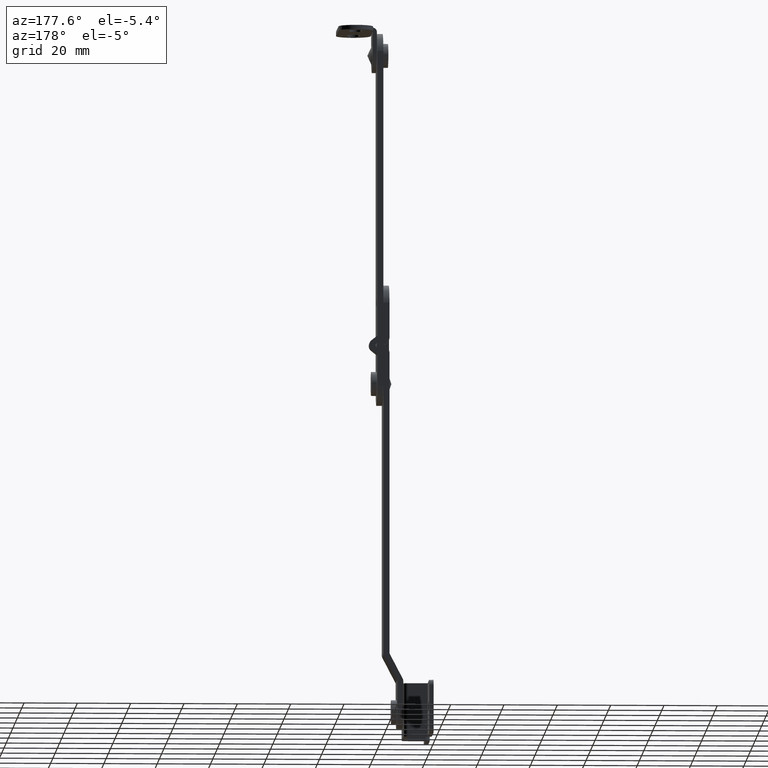
[diagram: clean part render]
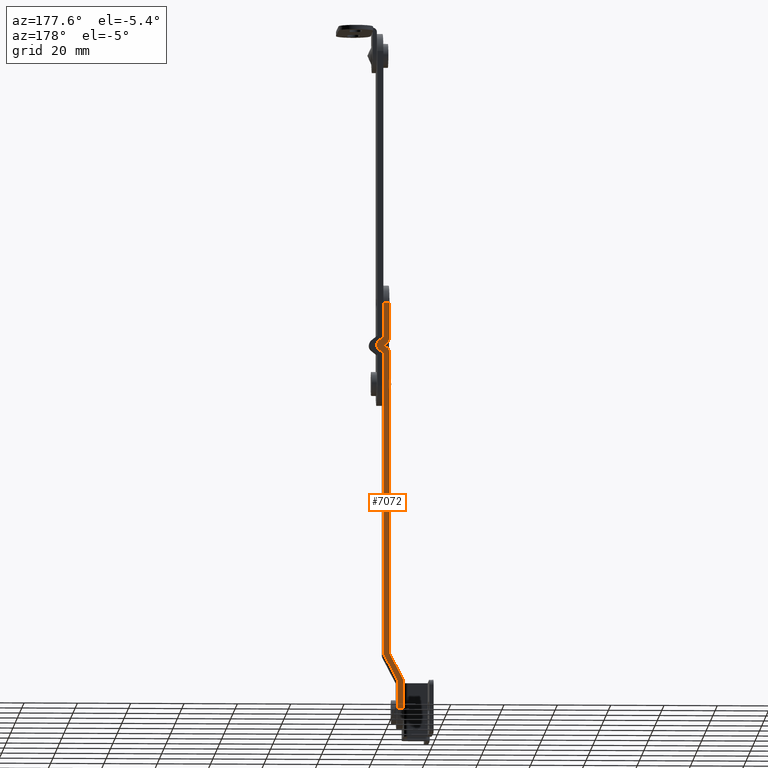
[diagram: same view with one face highlighted and labeled with its STEP entity id]
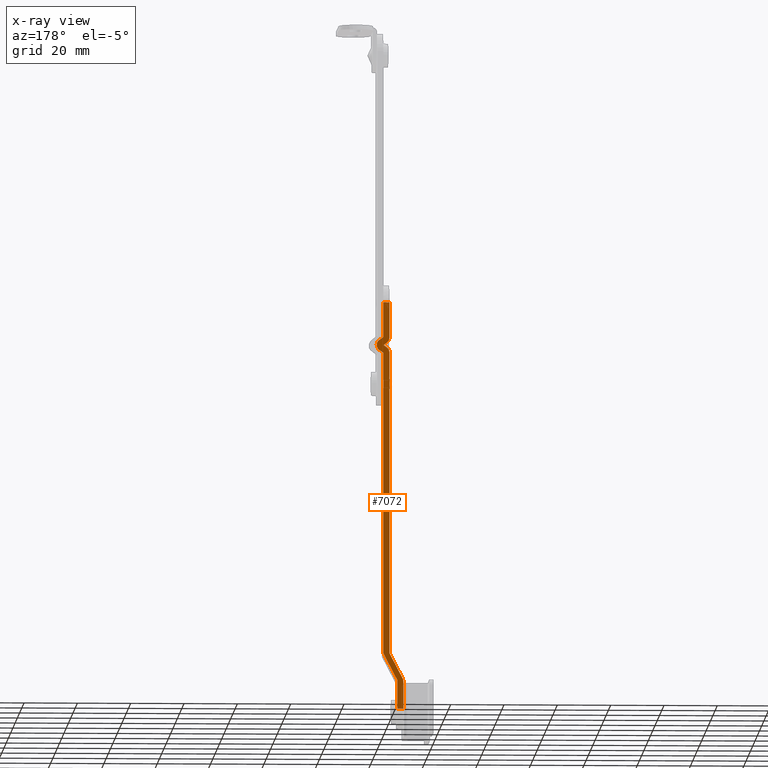
[diagram: x-ray of the same camera — body ghosted, the highlighted face saturated]
A machine part, auxiliary view. The second image highlights one B-rep face of the part: STEP entity #7072.
The next image is the same camera in x-ray: the body ghosted, the highlighted face saturated — about 0% of this face is hidden behind the body in this view.
In plain terms, the highlighted face is a freeform B-spline surface patch.
Its self-contained STEP definition (entity closure, byte-faithful):
#6071=CARTESIAN_POINT('',(12.800005999999900,7.099999999999799,-122.900000000032410));
#6072=VERTEX_POINT('',#6071);
#6123=CARTESIAN_POINT('',(10.500005999999900,7.099999999999799,-122.900000000032410));
#6124=VERTEX_POINT('',#6123);
#6137=CARTESIAN_POINT('',(10.500005999999900,7.099999999999799,-122.900000000032410));
#6138=CARTESIAN_POINT('',(12.800005999999900,7.099999999999799,-122.900000000032410));
#6139=QUASI_UNIFORM_CURVE('',1,(#6137,#6138),.UNSPECIFIED.,.F.,.U.);
#6140=EDGE_CURVE('',#6124,#6072,#6139,.T.);
#6161=CARTESIAN_POINT('',(18.000005999999900,7.099999999999810,30.0));
#6162=VERTEX_POINT('',#6161);
#6175=CARTESIAN_POINT('',(15.700005999999901,7.099999999999810,30.0));
#6176=VERTEX_POINT('',#6175);
#6177=CARTESIAN_POINT('',(18.000005999999900,7.099999999999810,30.0));
#6178=CARTESIAN_POINT('',(15.700005999999901,7.099999999999810,30.0));
#6179=QUASI_UNIFORM_CURVE('',1,(#6177,#6178),.UNSPECIFIED.,.F.,.U.);
#6180=EDGE_CURVE('',#6162,#6176,#6179,.T.);
#6320=CARTESIAN_POINT('',(19.561026998289702,7.099999999999770,12.145930733421380));
#6321=VERTEX_POINT('',#6320);
#6327=CARTESIAN_POINT('',(19.561026998287002,7.099999999999779,15.854069266524650));
#6328=VERTEX_POINT('',#6327);
#6329=CARTESIAN_POINT('',(19.561026998289702,7.099999999999770,12.145930733421380));
#6330=CARTESIAN_POINT('',(19.887717372291561,7.099999999999774,12.384546528588629));
#6331=CARTESIAN_POINT('',(20.306991514372680,7.099999999999771,12.912233009705361));
#6332=CARTESIAN_POINT('',(20.553737619657021,7.099999999999794,13.882895589743670));
#6333=CARTESIAN_POINT('',(20.448149027735329,7.099999999999759,14.681018137247190));
#6334=CARTESIAN_POINT('',(20.078951171945409,7.099999999999795,15.383115720602509));
#6335=CARTESIAN_POINT('',(19.760288412498010,7.099999999999786,15.707965993294540));
#6336=CARTESIAN_POINT('',(19.561026998287002,7.099999999999779,15.854069266524650));
#6337=B_SPLINE_CURVE_WITH_KNOTS('',3,(#6329,#6330,#6331,#6332,#6333,#6334,#6335,#6336),.UNSPECIFIED.,.F.,.U.,(4,1,1,1,1,4),(0.000001040172775,1.213023638568774,1.954308735717294,2.965130247296288,3.571682070490187,4.312933762035334),.UNSPECIFIED.);
#6338=EDGE_CURVE('',#6321,#6328,#6337,.T.);
#6354=CARTESIAN_POINT('',(17.999997000007362,7.099999999999885,10.999999999972101));
#6355=VERTEX_POINT('',#6354);
#6361=CARTESIAN_POINT('',(17.999997000007362,7.099999999999885,10.999999999972101));
#6362=CARTESIAN_POINT('',(19.561026998289702,7.099999999999770,12.145930733421380));
#6363=QUASI_UNIFORM_CURVE('',1,(#6361,#6362),.UNSPECIFIED.,.F.,.U.);
#6364=EDGE_CURVE('',#6355,#6321,#6363,.T.);
#6384=CARTESIAN_POINT('',(15.699988000014550,7.099999999999770,11.220224619865300));
#6385=VERTEX_POINT('',#6384);
#6391=CARTESIAN_POINT('',(15.699987999999900,7.099999999999770,10.999999999972101));
#6392=VERTEX_POINT('',#6391);
#6393=CARTESIAN_POINT('',(15.699988000014550,7.099999999999770,11.220224619865300));
#6394=CARTESIAN_POINT('',(15.699987999999900,7.099999999999770,10.999999999972101));
#6395=QUASI_UNIFORM_CURVE('',1,(#6393,#6394),.UNSPECIFIED.,.F.,.U.);
#6396=EDGE_CURVE('',#6385,#6392,#6395,.T.);
#6433=CARTESIAN_POINT('',(16.638949001737100,7.099999999999779,13.074293886416219));
#6434=VERTEX_POINT('',#6433);
#6440=CARTESIAN_POINT('',(16.638949001737100,7.099999999999779,13.074293886416219));
#6441=CARTESIAN_POINT('',(16.403352676712451,7.099999999999775,12.901682545196451));
#6442=CARTESIAN_POINT('',(16.077358205807169,7.099999999999777,12.549039962629720));
#6443=CARTESIAN_POINT('',(15.769466857447620,7.099999999999772,11.894015137331120));
#6444=CARTESIAN_POINT('',(15.699838640401859,7.099999999999765,11.467336830895130));
#6445=CARTESIAN_POINT('',(15.699988000014550,7.099999999999770,11.220224619865300));
#6446=B_SPLINE_CURVE_WITH_KNOTS('',3,(#6440,#6441,#6442,#6443,#6444,#6445),.UNSPECIFIED.,.F.,.U.,(4,1,1,4),(0.000000243634032,0.876074345869117,1.415158949094645,2.156466879870076),.UNSPECIFIED.);
#6447=EDGE_CURVE('',#6434,#6385,#6446,.T.);
#6470=CARTESIAN_POINT('',(17.899988000012549,7.099999999999779,13.999999999971701));
#6471=VERTEX_POINT('',#6470);
#6477=CARTESIAN_POINT('',(17.899988000012549,7.099999999999779,13.999999999971701));
#6478=CARTESIAN_POINT('',(16.638949001737100,7.099999999999779,13.074293886416219));
#6479=QUASI_UNIFORM_CURVE('',1,(#6477,#6478),.UNSPECIFIED.,.F.,.U.);
#6480=EDGE_CURVE('',#6471,#6434,#6479,.T.);
#6498=CARTESIAN_POINT('',(16.638949001735600,7.099999999999779,14.925706113525161));
#6499=VERTEX_POINT('',#6498);
#6505=CARTESIAN_POINT('',(16.638949001735600,7.099999999999779,14.925706113525161));
#6506=CARTESIAN_POINT('',(17.899988000012549,7.099999999999779,13.999999999971701));
#6507=QUASI_UNIFORM_CURVE('',1,(#6505,#6506),.UNSPECIFIED.,.F.,.U.);
#6508=EDGE_CURVE('',#6499,#6471,#6507,.T.);
#6537=CARTESIAN_POINT('',(15.699987999999900,7.099999999999779,16.779775380078000));
#6538=VERTEX_POINT('',#6537);
#6544=CARTESIAN_POINT('',(15.699987999999900,7.099999999999779,16.779775380078000));
#6545=CARTESIAN_POINT('',(15.699564098060961,7.099999999999780,16.442759258798301));
#6546=CARTESIAN_POINT('',(15.860849464594549,7.099999999999769,15.724434415783129));
#6547=CARTESIAN_POINT('',(16.330508482863198,7.099999999999790,15.151066240765291));
#6548=CARTESIAN_POINT('',(16.638949001735600,7.099999999999779,14.925706113525161));
#6549=B_SPLINE_CURVE_WITH_KNOTS('',3,(#6544,#6545,#6546,#6547,#6548),.UNSPECIFIED.,.F.,.U.,(4,1,4),(0.000000243633246,1.010890450250671,2.156466879876590),.UNSPECIFIED.);
#6550=EDGE_CURVE('',#6538,#6499,#6549,.T.);
#6577=CARTESIAN_POINT('',(15.699987999999900,7.099999999999779,16.999999999971699));
#6578=VERTEX_POINT('',#6577);
#6584=CARTESIAN_POINT('',(15.699987999999900,7.099999999999779,16.999999999971699));
#6585=CARTESIAN_POINT('',(15.699987999999900,7.099999999999779,16.779775380078000));
#6586=QUASI_UNIFORM_CURVE('',1,(#6584,#6585),.UNSPECIFIED.,.F.,.U.);
#6587=EDGE_CURVE('',#6578,#6538,#6586,.T.);
#6600=CARTESIAN_POINT('',(17.999997000004878,7.099999999999795,16.999999999971699));
#6601=VERTEX_POINT('',#6600);
#6602=CARTESIAN_POINT('',(19.561026998287002,7.099999999999779,15.854069266524650));
#6603=CARTESIAN_POINT('',(17.999997000004878,7.099999999999795,16.999999999971699));
#6604=QUASI_UNIFORM_CURVE('',1,(#6602,#6603),.UNSPECIFIED.,.F.,.U.);
#6605=EDGE_CURVE('',#6328,#6601,#6604,.T.);
#6870=CARTESIAN_POINT('',(17.740604642839450,7.099999999999759,-102.498848763802400));
#6871=VERTEX_POINT('',#6870);
#6872=CARTESIAN_POINT('',(18.000005999999900,7.099999999999759,-101.437737469526000));
#6873=VERTEX_POINT('',#6872);
#6874=CARTESIAN_POINT('',(17.740604642839450,7.099999999999759,-102.498848763802400));
#6875=CARTESIAN_POINT('',(17.910688378438731,7.099999999999771,-102.172811814388990));
#6876=CARTESIAN_POINT('',(18.000341831389481,7.099999999999750,-101.805434995747400));
#6877=CARTESIAN_POINT('',(18.000005999999900,7.099999999999759,-101.437737469526000));
#6878=B_SPLINE_CURVE_WITH_KNOTS('',3,(#6874,#6875,#6876,#6877),.UNSPECIFIED.,.F.,.U.,(4,4),(0.000000055879067,1.102935631574775),.UNSPECIFIED.);
#6879=EDGE_CURVE('',#6871,#6873,#6878,.T.);
#6900=CARTESIAN_POINT('',(12.800005999999900,7.099999999999759,-112.0));
#6901=VERTEX_POINT('',#6900);
#6902=CARTESIAN_POINT('',(12.800005999999900,7.099999999999759,-112.0));
#6903=CARTESIAN_POINT('',(17.740604642839450,7.099999999999759,-102.498848763802400));
#6904=QUASI_UNIFORM_CURVE('',1,(#6902,#6903),.UNSPECIFIED.,.F.,.U.);
#6905=EDGE_CURVE('',#6901,#6871,#6904,.T.);
#6922=CARTESIAN_POINT('',(12.800005999999900,7.099999999999799,-122.900000000032410));
#6923=CARTESIAN_POINT('',(12.800005999999900,7.099999999999759,-112.0));
#6924=QUASI_UNIFORM_CURVE('',1,(#6922,#6923),.UNSPECIFIED.,.F.,.U.);
#6925=EDGE_CURVE('',#6072,#6901,#6924,.T.);
#6950=CARTESIAN_POINT('',(10.500005999999900,7.099999999999759,-112.562262530539000));
#6951=VERTEX_POINT('',#6950);
#6957=CARTESIAN_POINT('',(10.500005999999900,7.099999999999759,-112.562262530539000));
#6958=CARTESIAN_POINT('',(10.500005999999900,7.099999999999799,-122.900000000032410));
#6959=QUASI_UNIFORM_CURVE('',1,(#6957,#6958),.UNSPECIFIED.,.F.,.U.);
#6960=EDGE_CURVE('',#6951,#6124,#6959,.T.);
#6987=CARTESIAN_POINT('',(10.759407357160320,7.099999999999759,-111.501151236262400));
#6988=VERTEX_POINT('',#6987);
#6989=CARTESIAN_POINT('',(10.759407357160320,7.099999999999759,-111.501151236262400));
#6990=CARTESIAN_POINT('',(10.589471380583200,7.099999999999764,-111.827223260139600));
#6991=CARTESIAN_POINT('',(10.499521475262990,7.099999999999760,-112.194530186918700));
#6992=CARTESIAN_POINT('',(10.500005999999900,7.099999999999759,-112.562262530539000));
#6993=B_SPLINE_CURVE_WITH_KNOTS('',3,(#6989,#6990,#6991,#6992),.UNSPECIFIED.,.F.,.U.,(4,4),(0.000000055878003,1.102935631574964),.UNSPECIFIED.);
#6994=EDGE_CURVE('',#6988,#6951,#6993,.T.);
#7011=CARTESIAN_POINT('',(15.700005999999901,7.099999999999759,-102.000000000032400));
#7012=VERTEX_POINT('',#7011);
#7013=CARTESIAN_POINT('',(15.700005999999901,7.099999999999759,-102.000000000032400));
#7014=CARTESIAN_POINT('',(10.759407357160320,7.099999999999759,-111.501151236262400));
#7015=QUASI_UNIFORM_CURVE('',1,(#7013,#7014),.UNSPECIFIED.,.F.,.U.);
#7016=EDGE_CURVE('',#7012,#6988,#7015,.T.);
#7028=CARTESIAN_POINT('',(10.000512245995839,7.099999999999810,-130.537356139000000));
#7029=CARTESIAN_POINT('',(20.999369459067829,7.099999999999810,-130.537356139000000));
#7030=CARTESIAN_POINT('',(10.000512245995839,7.099999999999810,37.637358873032611));
#7031=CARTESIAN_POINT('',(20.999369459067829,7.099999999999810,37.637358873032611));
#7032=B_SPLINE_SURFACE_WITH_KNOTS('',1,1,((#7028,#7030),(#7029,#7031)),.UNSPECIFIED.,.F.,.F.,.U.,(2,2),(2,2),(0.0,10.998857213071989),(0.0,168.174715012032610),.UNSPECIFIED.);
#7033=ORIENTED_EDGE('',*,*,#6960,.F.);
#7034=ORIENTED_EDGE('',*,*,#6994,.F.);
#7035=ORIENTED_EDGE('',*,*,#7016,.F.);
#7036=CARTESIAN_POINT('',(15.699987999999900,7.099999999999770,10.999999999972101));
#7037=CARTESIAN_POINT('',(15.700005999999901,7.099999999999759,-102.000000000032400));
#7038=QUASI_UNIFORM_CURVE('',1,(#7036,#7037),.UNSPECIFIED.,.F.,.U.);
#7039=EDGE_CURVE('',#6392,#7012,#7038,.T.);
#7040=ORIENTED_EDGE('',*,*,#7039,.F.);
#7041=ORIENTED_EDGE('',*,*,#6396,.F.);
#7042=ORIENTED_EDGE('',*,*,#6447,.F.);
#7043=ORIENTED_EDGE('',*,*,#6480,.F.);
#7044=ORIENTED_EDGE('',*,*,#6508,.F.);
#7045=ORIENTED_EDGE('',*,*,#6550,.F.);
#7046=ORIENTED_EDGE('',*,*,#6587,.F.);
#7047=CARTESIAN_POINT('',(15.700005999999901,7.099999999999810,30.0));
#7048=CARTESIAN_POINT('',(15.699987999999900,7.099999999999779,16.999999999971699));
#7049=QUASI_UNIFORM_CURVE('',1,(#7047,#7048),.UNSPECIFIED.,.F.,.U.);
#7050=EDGE_CURVE('',#6176,#6578,#7049,.T.);
#7051=ORIENTED_EDGE('',*,*,#7050,.F.);
#7052=ORIENTED_EDGE('',*,*,#6180,.F.);
#7053=CARTESIAN_POINT('',(17.999997000004878,7.099999999999795,16.999999999971699));
#7054=CARTESIAN_POINT('',(18.000005999999900,7.099999999999810,30.0));
#7055=QUASI_UNIFORM_CURVE('',1,(#7053,#7054),.UNSPECIFIED.,.F.,.U.);
#7056=EDGE_CURVE('',#6601,#6162,#7055,.T.);
#7057=ORIENTED_EDGE('',*,*,#7056,.F.);
#7058=ORIENTED_EDGE('',*,*,#6605,.F.);
#7059=ORIENTED_EDGE('',*,*,#6338,.F.);
#7060=ORIENTED_EDGE('',*,*,#6364,.F.);
#7061=CARTESIAN_POINT('',(18.000005999999900,7.099999999999759,-101.437737469526000));
#7062=CARTESIAN_POINT('',(17.999997000007362,7.099999999999885,10.999999999972101));
#7063=QUASI_UNIFORM_CURVE('',1,(#7061,#7062),.UNSPECIFIED.,.F.,.U.);
#7064=EDGE_CURVE('',#6873,#6355,#7063,.T.);
#7065=ORIENTED_EDGE('',*,*,#7064,.F.);
#7066=ORIENTED_EDGE('',*,*,#6879,.F.);
#7067=ORIENTED_EDGE('',*,*,#6905,.F.);
#7068=ORIENTED_EDGE('',*,*,#6925,.F.);
#7069=ORIENTED_EDGE('',*,*,#6140,.F.);
#7070=EDGE_LOOP('',(#7033,#7034,#7035,#7040,#7041,#7042,#7043,#7044,#7045,#7046,#7051,#7052,#7057,#7058,#7059,#7060,#7065,#7066,#7067,#7068,#7069));
#7071=FACE_OUTER_BOUND('',#7070,.T.);
#7072=ADVANCED_FACE('',(#7071),#7032,.F.);